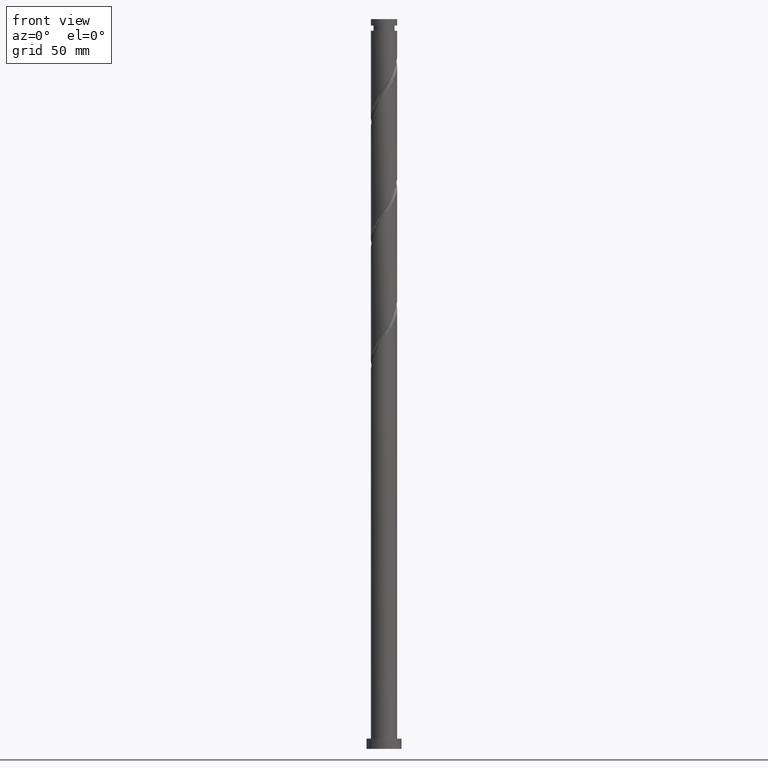
[diagram: clean part render]
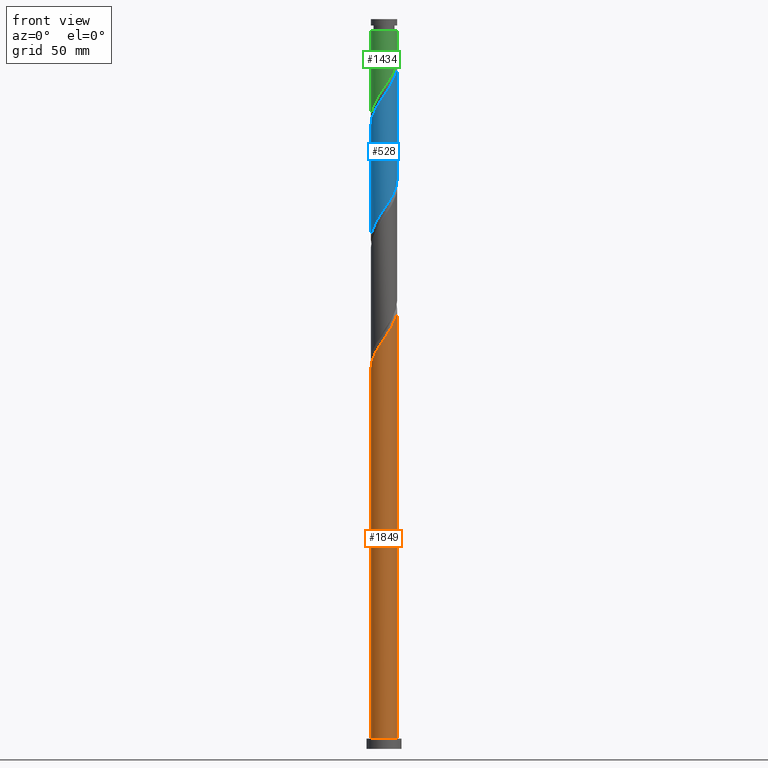
[diagram: same view with three faces highlighted in distinct colors, each labeled with its STEP entity id]
A machine part, front view with three faces highlighted in distinct colors.
Their STEP definitions:

[orange] entity #1849 — the highlighted cylindrical surface (edge-blend (fillet) strip) has radius 9 mm, axis along (-0, -0, -1).
#17 = CARTESIAN_POINT ( 'NONE',  ( 0.9222832091817327882, -8.996395876206099373, 282.4295620124471498 ) ) ;
#167 = CARTESIAN_POINT ( 'NONE',  ( 5.029915224307705657, -7.463240103083770727, 288.9399786791136080 ) ) ;
#176 = CARTESIAN_POINT ( 'NONE',  ( -8.820000000000012719, -1.790977386791924530, 262.8983120124469792 ) ) ;
#178 = DIRECTION ( 'NONE',  ( -0.000000000000000000, -0.000000000000000000, -1.000000000000000000 ) ) ;
#187 = CARTESIAN_POINT ( 'NONE',  ( -5.709259818917129081, -7.013565241690921326, 272.0128953457802936 ) ) ;
#227 = VERTEX_POINT ( 'NONE', #1030 ) ;
#252 = CARTESIAN_POINT ( 'NONE',  ( 9.000000000000015987, 1.262931168823190377E-14, 301.9081150344501339 ) ) ;
#292 = DIRECTION ( 'NONE',  ( -0.000000000000000000, -0.000000000000000000, -1.000000000000000000 ) ) ;
#324 = CARTESIAN_POINT ( 'NONE',  ( 7.992622888744461029, -4.231279290908929624, 295.4503953457804073 ) ) ;
#341 = CARTESIAN_POINT ( 'NONE',  ( 5.764980215651893225, -6.967836693874138732, 290.2420620124469792 ) ) ;
#351 = CARTESIAN_POINT ( 'NONE',  ( 8.664528520498114617, -2.590693072679860265, 298.0545620124471498 ) ) ;
#389 = CARTESIAN_POINT ( 'NONE',  ( -9.000000000000017764, 9.345243330105487039E-15, 260.2414483677833914 ) ) ;
#392 = VERTEX_POINT ( 'NONE', #389 ) ;
#472 = CARTESIAN_POINT ( 'NONE',  ( -4.231279290908926072, -7.992622888744462806, 274.6170620124470361 ) ) ;
#482 = CARTESIAN_POINT ( 'NONE',  ( 8.328575704621288267, -3.410986181794391836, 296.7524786791136080 ) ) ;
#492 = CARTESIAN_POINT ( 'NONE',  ( -7.958643512293401834, -4.294850232963518089, 266.8045620124470361 ) ) ;
#493 = LINE ( 'NONE', #686, #993 ) ;
#503 = CARTESIAN_POINT ( 'NONE',  ( -4.970269554913028465, -7.503094065217691622, 273.3149786791136080 ) ) ;
#513 = CARTESIAN_POINT ( 'NONE',  ( 3.477260898682818180, -8.301123818043667058, 286.3358120124470361 ) ) ;
#544 = CARTESIAN_POINT ( 'NONE',  ( -9.000000000000001776, 0.000000000000000000, 500.0000000000000000 ) ) ;
#574 =( BOUNDED_CURVE ( )  B_SPLINE_CURVE ( 2, ( #1285, #796, #1147, #814, #176, #1129, #1606, #492, #1118, #1786, #1635, #187, #503, #472, #823, #664, #971, #675, #1468, #17, #1936, #1776, #513, #1947, #167, #341, #1317, #1806, #1457, #324, #482, #351, #982, #1956, #1477 ),
 .UNSPECIFIED., .F., .T. ) 
 B_SPLINE_CURVE_WITH_KNOTS ( ( 3, 2, 2, 2, 2, 2, 2, 2, 2, 2, 2, 2, 2, 2, 2, 2, 2, 3 ),
 ( 0.05452869021808708083, 0.05468750000000000000, 0.06250000000000000000, 0.07031250000000000000, 0.07812500000000000000, 0.08593750000000000000, 0.09375000000000000000, 0.1015625000000000000, 0.1093750000000000000, 0.1171875000000000000, 0.1250000000000000000, 0.1328125000000000000, 0.1406250000000000000, 0.1484375000000000000, 0.1562500000000000000, 0.1640625000000000000, 0.1718750000000000000, 0.1795286902180874278 ),
 .UNSPECIFIED. ) 
 CURVE ( )  GEOMETRIC_REPRESENTATION_ITEM ( )  RATIONAL_B_SPLINE_CURVE ( ( 0.9089165573359389017, 0.9090019243628436607, 0.9090909090909354839, 0.9047133878838415910, 0.9090909090909354839, 0.9047133878838415910, 0.9090909090909354839, 0.9047133878838415910, 0.9090909090909354839, 0.9047133878838415910, 0.9090909090909354839, 0.9047133878838415910, 0.9090909090909354839, 0.9047133878838415910, 0.9090909090909354839, 0.9047133878838415910, 0.9090909090909354839, 0.9047133878838415910, 0.9090909090909354839, 0.9047133878838415910, 0.9090909090909354839, 0.9047133878838415910, 0.9090909090909354839, 0.9047133878838415910, 0.9090909090909354839, 0.9047133878838415910, 0.9090909090909354839, 0.9047133878838415910, 0.9090909090909354839, 0.9047133878838415910, 0.9090909090909354839, 0.9047133878838415910, 0.9090909090909354839, 0.9048023726119333032, 0.9089165573359391237 ) ) 
 REPRESENTATION_ITEM ( '' )  );
#585 = VERTEX_POINT ( 'NONE', #1937 ) ;
#610 = CARTESIAN_POINT ( 'NONE',  ( 0.000000000000000000, 0.000000000000000000, 7.000000000000000000 ) ) ;
#664 = CARTESIAN_POINT ( 'NONE',  ( -2.590693072679859377, -8.664528520498114617, 277.2212286791135512 ) ) ;
#675 = CARTESIAN_POINT ( 'NONE',  ( -0.8505479725451170481, -9.003461180332596570, 279.8253953457804073 ) ) ;
#686 = CARTESIAN_POINT ( 'NONE',  ( 9.000000000000001776, 1.102182119232617911E-15, 500.0000000000000000 ) ) ;
#714 = EDGE_CURVE ( 'NONE', #2095, #585, #493, .T. ) ;
#782 = DIRECTION ( 'NONE',  ( -1.000000000000000000, 0.000000000000000000, 0.000000000000000000 ) ) ;
#796 = CARTESIAN_POINT ( 'NONE',  ( -9.000000000000014211, -0.01793388036833428595, 260.2678019223006345 ) ) ;
#814 = CARTESIAN_POINT ( 'NONE',  ( -8.996395876206099373, -0.9222832091817332323, 261.5962286791136648 ) ) ;
#823 = CARTESIAN_POINT ( 'NONE',  ( -3.410986181794391836, -8.328575704621290043, 275.9191453457802936 ) ) ;
#862 = LINE ( 'NONE', #544, #1363 ) ;
#875 = ORIENTED_EDGE ( 'NONE', *, *, #1782, .T. ) ;
#929 = ORIENTED_EDGE ( 'NONE', *, *, #1902, .T. ) ;
#971 = CARTESIAN_POINT ( 'NONE',  ( -1.720620522612488656, -8.833994850415354705, 278.5233120124469792 ) ) ;
#982 = CARTESIAN_POINT ( 'NONE',  ( 8.833994850415352929, -1.720620522612493319, 299.3566453457803505 ) ) ;
#993 = VECTOR ( 'NONE', #178, 1000.000000000000000 ) ;
#1020 = ORIENTED_EDGE ( 'NONE', *, *, #1525, .F. ) ;
#1026 = AXIS2_PLACEMENT_3D ( 'NONE', #1552, #292, #782 ) ;
#1030 = CARTESIAN_POINT ( 'NONE',  ( -9.000000000000001776, 0.000000000000000000, 7.000000000000000000 ) ) ;
#1115 = CYLINDRICAL_SURFACE ( 'NONE', #1026, 9.000000000000001776 ) ;
#1118 = CARTESIAN_POINT ( 'NONE',  ( -7.463240103083769839, -5.029915224307705657, 268.1066453457804073 ) ) ;
#1129 = CARTESIAN_POINT ( 'NONE',  ( -8.643604123793931393, -2.659671564402114718, 264.2003953457803505 ) ) ;
#1147 = CARTESIAN_POINT ( 'NONE',  ( -8.999928528269348860, -0.03586761831830832109, 260.2941453457803505 ) ) ;
#1231 = FACE_OUTER_BOUND ( 'NONE', #1461, .T. ) ;
#1242 = DIRECTION ( 'NONE',  ( 0.000000000000000000, 0.000000000000000000, 1.000000000000000000 ) ) ;
#1285 = CARTESIAN_POINT ( 'NONE',  ( -9.000000000000017764, 9.345243330105488616E-15, 260.2414483677833914 ) ) ;
#1317 = CARTESIAN_POINT ( 'NONE',  ( 6.389272728671402390, -6.338548256395634795, 291.5441453457802936 ) ) ;
#1359 = DIRECTION ( 'NONE',  ( -0.000000000000000000, -0.000000000000000000, -1.000000000000000000 ) ) ;
#1363 = VECTOR ( 'NONE', #1359, 1000.000000000000000 ) ;
#1430 = CIRCLE ( 'NONE', #1908, 9.000000000000001776 ) ;
#1457 = CARTESIAN_POINT ( 'NONE',  ( 7.503094065217691622, -4.970269554913029353, 294.1483120124468655 ) ) ;
#1461 = EDGE_LOOP ( 'NONE', ( #1675, #1020, #875, #929 ) ) ;
#1468 = CARTESIAN_POINT ( 'NONE',  ( 0.03586761831830599656, -8.999928528269348860, 281.1274786791135512 ) ) ;
#1477 = CARTESIAN_POINT ( 'NONE',  ( 9.000000000000015987, 1.262931168823190377E-14, 301.9081150344500770 ) ) ;
#1525 = EDGE_CURVE ( 'NONE', #392, #2095, #574, .T. ) ;
#1552 = CARTESIAN_POINT ( 'NONE',  ( 0.000000000000000000, 0.000000000000000000, 500.0000000000000000 ) ) ;
#1606 = CARTESIAN_POINT ( 'NONE',  ( -8.301123818043667058, -3.477260898682816848, 265.5024786791135512 ) ) ;
#1635 = CARTESIAN_POINT ( 'NONE',  ( -6.338548256395633906, -6.389272728671402390, 270.7108120124469792 ) ) ;
#1675 = ORIENTED_EDGE ( 'NONE', *, *, #714, .F. ) ;
#1776 = CARTESIAN_POINT ( 'NONE',  ( 2.659671564402114274, -8.643604123793931393, 285.0337286791137217 ) ) ;
#1782 = EDGE_CURVE ( 'NONE', #392, #227, #862, .T. ) ;
#1786 = CARTESIAN_POINT ( 'NONE',  ( -6.967836693874138732, -5.764980215651893225, 269.4087286791137217 ) ) ;
#1806 = CARTESIAN_POINT ( 'NONE',  ( 7.013565241690918661, -5.709259818917129081, 292.8462286791135512 ) ) ;
#1849 = ADVANCED_FACE ( 'NONE', ( #1231 ), #1115, .T. ) ;
#1892 = DIRECTION ( 'NONE',  ( 1.000000000000000000, 0.000000000000000000, 0.000000000000000000 ) ) ;
#1902 = EDGE_CURVE ( 'NONE', #227, #585, #1430, .T. ) ;
#1908 = AXIS2_PLACEMENT_3D ( 'NONE', #610, #1242, #1892 ) ;
#1936 = CARTESIAN_POINT ( 'NONE',  ( 1.790977386791924308, -8.820000000000012719, 283.7316453457802936 ) ) ;
#1937 = CARTESIAN_POINT ( 'NONE',  ( 9.000000000000001776, 1.102182119232617911E-15, 7.000000000000000000 ) ) ;
#1947 = CARTESIAN_POINT ( 'NONE',  ( 4.294850232963518089, -7.958643512293401834, 287.6378953457803505 ) ) ;
#1956 = CARTESIAN_POINT ( 'NONE',  ( 9.000000000000017764, -0.8683183343608136262, 300.6321349290341800 ) ) ;
#2095 = VERTEX_POINT ( 'NONE', #252 ) ;

[blue] entity #528 — the highlighted cylindrical surface (edge-blend (fillet) strip) has radius 9 mm, axis along (-0, -0, -1).
#29 = CARTESIAN_POINT ( 'NONE',  ( 9.000000000000017764, 9.691915699351521729E-17, 468.5747817011167626 ) ) ;
#67 = VECTOR ( 'NONE', #1737, 1000.000000000000000 ) ;
#88 = CARTESIAN_POINT ( 'NONE',  ( 7.463240103083752075, -5.029915224307703880, 382.6899786791136080 ) ) ;
#90 = EDGE_CURVE ( 'NONE', #1164, #290, #212, .T. ) ;
#98 = CARTESIAN_POINT ( 'NONE',  ( 7.958643512293386735, -4.294850232963515424, 383.9920620124470361 ) ) ;
#103 = CARTESIAN_POINT ( 'NONE',  ( 0.9222832091817327882, -8.996395876206099373, 449.0962286791136648 ) ) ;
#108 = CARTESIAN_POINT ( 'NONE',  ( 4.231279290908916302, -7.992622888744453036, 376.1795620124470361 ) ) ;
#113 = CARTESIAN_POINT ( 'NONE',  ( -5.709259818917129081, -7.013565241690921326, 438.6795620124469792 ) ) ;
#123 = CARTESIAN_POINT ( 'NONE',  ( -8.999928528269348860, -0.03586761831830832109, 426.9608120124469792 ) ) ;
#143 = CARTESIAN_POINT ( 'NONE',  ( -8.643604123793931393, -2.659671564402114718, 430.8670620124469792 ) ) ;
#212 = LINE ( 'NONE', #532, #638 ) ;
#235 = CARTESIAN_POINT ( 'NONE',  ( 8.820000000000000284, -1.790977386791924975, 387.8983120124469792 ) ) ;
#255 = CARTESIAN_POINT ( 'NONE',  ( 8.999928528269329320, -0.03586761831830977826, 390.5024786791134943 ) ) ;
#265 = CARTESIAN_POINT ( 'NONE',  ( 8.643604123793918959, -2.659671564402111166, 386.5962286791136080 ) ) ;
#268 = ORIENTED_EDGE ( 'NONE', *, *, #435, .T. ) ;
#271 = CARTESIAN_POINT ( 'NONE',  ( 5.029915224307705657, -7.463240103083770727, 455.6066453457803505 ) ) ;
#277 = CARTESIAN_POINT ( 'NONE',  ( -0.9222832091817350086, -8.996395876206085163, 368.3670620124470361 ) ) ;
#290 = VERTEX_POINT ( 'NONE', #915 ) ;
#307 = EDGE_CURVE ( 'NONE', #290, #1043, #643, .T. ) ;
#400 = CARTESIAN_POINT ( 'NONE',  ( -3.477260898682815515, -8.301123818043651070, 364.4608120124469792 ) ) ;
#426 = CARTESIAN_POINT ( 'NONE',  ( -7.958643512293401834, -4.294850232963518089, 433.4712286791136648 ) ) ;
#435 = EDGE_CURVE ( 'NONE', #1334, #1043, #1537, .T. ) ;
#439 = CARTESIAN_POINT ( 'NONE',  ( 8.833994850415352929, -1.720620522612493319, 466.0233120124469224 ) ) ;
#459 = CARTESIAN_POINT ( 'NONE',  ( 7.992622888744461029, -4.231279290908929624, 462.1170620124469792 ) ) ;
#514 = AXIS2_PLACEMENT_3D ( 'NONE', #1598, #1287, #1617 ) ;
#528 = ADVANCED_FACE ( 'NONE', ( #636 ), #646, .T. ) ;
#532 = CARTESIAN_POINT ( 'NONE',  ( 9.000000000000001776, 1.102182119232617911E-15, 500.0000000000000000 ) ) ;
#572 = CARTESIAN_POINT ( 'NONE',  ( -7.013565241690911556, -5.709259818917118423, 357.9503953457804073 ) ) ;
#587 = CARTESIAN_POINT ( 'NONE',  ( -9.000000000000017764, -0.01793388036832959179, 426.9344685889673201 ) ) ;
#594 = CARTESIAN_POINT ( 'NONE',  ( -8.328575704621277609, -3.410986181794382510, 354.0441453457802368 ) ) ;
#599 = CARTESIAN_POINT ( 'NONE',  ( 7.013565241690918661, -5.709259818917129081, 459.5128953457804073 ) ) ;
#632 = CARTESIAN_POINT ( 'NONE',  ( -8.820000000000012719, -1.790977386791924530, 429.5649786791136648 ) ) ;
#636 = FACE_OUTER_BOUND ( 'NONE', #2052, .T. ) ;
#638 = VECTOR ( 'NONE', #1810, 1000.000000000000000 ) ;
#643 =( BOUNDED_CURVE ( )  B_SPLINE_CURVE ( 2, ( #745, #1558, #255, #1081, #235, #265, #902, #98, #88, #1206, #1216, #1855, #1885, #108, #1727, #1397, #756, #1546, #1226, #277, #1386, #1864, #400, #2037, #768, #1683, #1571, #572, #2049, #1408, #594, #927, #883, #1526, #1876 ),
 .UNSPECIFIED., .F., .T. ) 
 B_SPLINE_CURVE_WITH_KNOTS ( ( 3, 2, 2, 2, 2, 2, 2, 2, 2, 2, 2, 2, 2, 2, 2, 2, 2, 3 ),
 ( 0.5545286902180872612, 0.5546875000000000000, 0.5625000000000000000, 0.5703125000000000000, 0.5781250000000000000, 0.5859375000000000000, 0.5937500000000000000, 0.6015625000000000000, 0.6093750000000000000, 0.6171875000000000000, 0.6250000000000000000, 0.6328125000000000000, 0.6406250000000000000, 0.6484375000000000000, 0.6562500000000000000, 0.6640625000000000000, 0.6718750000000000000, 0.6795286902180870392 ),
 .UNSPECIFIED. ) 
 CURVE ( )  GEOMETRIC_REPRESENTATION_ITEM ( )  RATIONAL_B_SPLINE_CURVE ( ( 0.9089165573359329064, 0.9090019243628376655, 0.9090909090909294887, 0.9047133878838355958, 0.9090909090909294887, 0.9047133878838355958, 0.9090909090909294887, 0.9047133878838355958, 0.9090909090909294887, 0.9047133878838355958, 0.9090909090909294887, 0.9047133878838355958, 0.9090909090909294887, 0.9047133878838355958, 0.9090909090909294887, 0.9047133878838355958, 0.9090909090909294887, 0.9047133878838355958, 0.9090909090909294887, 0.9047133878838355958, 0.9090909090909294887, 0.9047133878838355958, 0.9090909090909294887, 0.9047133878838355958, 0.9090909090909294887, 0.9047133878838355958, 0.9090909090909294887, 0.9047133878838355958, 0.9090909090909294887, 0.9047133878838355958, 0.9090909090909294887, 0.9047133878838355958, 0.9090909090909294887, 0.9048023726119275301, 0.9089165573359326844 ) ) 
 REPRESENTATION_ITEM ( '' )  );
#646 = CYLINDRICAL_SURFACE ( 'NONE', #514, 9.000000000000001776 ) ;
#745 = CARTESIAN_POINT ( 'NONE',  ( 9.000000000000000000, 7.742349579828172045E-15, 390.5551756571103965 ) ) ;
#750 = CARTESIAN_POINT ( 'NONE',  ( -4.231279290908926072, -7.992622888744462806, 441.2837286791137217 ) ) ;
#756 = CARTESIAN_POINT ( 'NONE',  ( 1.720620522612482661, -8.833994850415340494, 372.2733120124469792 ) ) ;
#762 = CARTESIAN_POINT ( 'NONE',  ( 7.503094065217691622, -4.970269554913029353, 460.8149786791136648 ) ) ;
#767 = CARTESIAN_POINT ( 'NONE',  ( -9.000000000000017764, -3.187149201132904323E-15, 426.9081150344500770 ) ) ;
#768 = CARTESIAN_POINT ( 'NONE',  ( -5.029915224307700328, -7.463240103083756516, 361.8566453457802368 ) ) ;
#772 = CARTESIAN_POINT ( 'NONE',  ( 8.328575704621288267, -3.410986181794391836, 463.4191453457802368 ) ) ;
#790 = CARTESIAN_POINT ( 'NONE',  ( 1.790977386791924308, -8.820000000000012719, 450.3983120124469224 ) ) ;
#793 =( BOUNDED_CURVE ( )  B_SPLINE_CURVE ( 2, ( #2066, #587, #123, #1594, #632, #143, #1412, #426, #1763, #940, #1402, #113, #2089, #750, #2077, #1435, #1273, #1075, #2042, #103, #790, #1923, #1391, #1721, #271, #921, #1563, #599, #762, #459, #772, #1584, #439, #2054, #1903 ),
 .UNSPECIFIED., .F., .T. ) 
 B_SPLINE_CURVE_WITH_KNOTS ( ( 3, 2, 2, 2, 2, 2, 2, 2, 2, 2, 2, 2, 2, 2, 2, 2, 2, 3 ),
 ( 0.5545286902180870392, 0.5546875000000000000, 0.5625000000000000000, 0.5703125000000000000, 0.5781250000000000000, 0.5859375000000000000, 0.5937500000000000000, 0.6015625000000000000, 0.6093750000000000000, 0.6171875000000000000, 0.6250000000000000000, 0.6328125000000000000, 0.6406250000000000000, 0.6484375000000000000, 0.6562500000000000000, 0.6640625000000000000, 0.6718750000000000000, 0.6795286902180870392 ),
 .UNSPECIFIED. ) 
 CURVE ( )  GEOMETRIC_REPRESENTATION_ITEM ( )  RATIONAL_B_SPLINE_CURVE ( ( 0.9089165573359386796, 0.9090019243628435497, 0.9090909090909354839, 0.9047133878838415910, 0.9090909090909354839, 0.9047133878838415910, 0.9090909090909354839, 0.9047133878838415910, 0.9090909090909354839, 0.9047133878838415910, 0.9090909090909354839, 0.9047133878838415910, 0.9090909090909354839, 0.9047133878838415910, 0.9090909090909354839, 0.9047133878838415910, 0.9090909090909354839, 0.9047133878838415910, 0.9090909090909354839, 0.9047133878838415910, 0.9090909090909354839, 0.9047133878838415910, 0.9090909090909354839, 0.9047133878838415910, 0.9090909090909354839, 0.9047133878838415910, 0.9090909090909354839, 0.9047133878838415910, 0.9090909090909354839, 0.9047133878838415910, 0.9090909090909354839, 0.9047133878838415910, 0.9090909090909354839, 0.9048023726119335253, 0.9089165573359386796 ) ) 
 REPRESENTATION_ITEM ( '' )  );
#845 = CARTESIAN_POINT ( 'NONE',  ( -9.000000000000000000, -6.754519710471182682E-15, 348.8885089904438246 ) ) ;
#883 = CARTESIAN_POINT ( 'NONE',  ( -8.833994850415340494, -1.720620522612483327, 351.4399786791136080 ) ) ;
#885 = ORIENTED_EDGE ( 'NONE', *, *, #1875, .F. ) ;
#902 = CARTESIAN_POINT ( 'NONE',  ( 8.301123818043651070, -3.477260898682816403, 385.2941453457803505 ) ) ;
#915 = CARTESIAN_POINT ( 'NONE',  ( 9.000000000000000000, 7.742349579828170467E-15, 390.5551756571103965 ) ) ;
#921 = CARTESIAN_POINT ( 'NONE',  ( 5.764980215651893225, -6.967836693874138732, 456.9087286791137785 ) ) ;
#927 = CARTESIAN_POINT ( 'NONE',  ( -8.664528520498102182, -2.590693072679854048, 352.7420620124469792 ) ) ;
#940 = CARTESIAN_POINT ( 'NONE',  ( -6.967836693874138732, -5.764980215651893225, 436.0753953457804073 ) ) ;
#1043 = VERTEX_POINT ( 'NONE', #845 ) ;
#1075 = CARTESIAN_POINT ( 'NONE',  ( -0.8505479725451170481, -9.003461180332596570, 446.4920620124469224 ) ) ;
#1081 = CARTESIAN_POINT ( 'NONE',  ( 8.996395876206083386, -0.9222832091817394495, 389.2003953457803505 ) ) ;
#1083 = ORIENTED_EDGE ( 'NONE', *, *, #90, .F. ) ;
#1113 = ORIENTED_EDGE ( 'NONE', *, *, #307, .F. ) ;
#1164 = VERTEX_POINT ( 'NONE', #29 ) ;
#1206 = CARTESIAN_POINT ( 'NONE',  ( 6.967836693874127185, -5.764980215651887896, 381.3878953457805210 ) ) ;
#1216 = CARTESIAN_POINT ( 'NONE',  ( 6.338548256395620584, -6.389272728671397061, 380.0858120124469224 ) ) ;
#1226 = CARTESIAN_POINT ( 'NONE',  ( -0.03586761831830934805, -8.999928528269329320, 369.6691453457802368 ) ) ;
#1273 = CARTESIAN_POINT ( 'NONE',  ( -1.720620522612488656, -8.833994850415354705, 445.1899786791136648 ) ) ;
#1287 = DIRECTION ( 'NONE',  ( -0.000000000000000000, -0.000000000000000000, -1.000000000000000000 ) ) ;
#1334 = VERTEX_POINT ( 'NONE', #767 ) ;
#1386 = CARTESIAN_POINT ( 'NONE',  ( -1.790977386791924308, -8.820000000000000284, 367.0649786791135512 ) ) ;
#1391 = CARTESIAN_POINT ( 'NONE',  ( 3.477260898682818180, -8.301123818043667058, 453.0024786791134943 ) ) ;
#1397 = CARTESIAN_POINT ( 'NONE',  ( 2.590693072679852715, -8.664528520498102182, 373.5753953457804641 ) ) ;
#1402 = CARTESIAN_POINT ( 'NONE',  ( -6.338548256395633906, -6.389272728671402390, 437.3774786791136080 ) ) ;
#1408 = CARTESIAN_POINT ( 'NONE',  ( -7.992622888744453036, -4.231279290908918078, 355.3462286791137217 ) ) ;
#1412 = CARTESIAN_POINT ( 'NONE',  ( -8.301123818043667058, -3.477260898682816848, 432.1691453457803505 ) ) ;
#1435 = CARTESIAN_POINT ( 'NONE',  ( -2.590693072679859377, -8.664528520498114617, 443.8878953457804641 ) ) ;
#1526 = CARTESIAN_POINT ( 'NONE',  ( -8.999999999999998224, -0.8683183343608487093, 350.1644890958598353 ) ) ;
#1537 = LINE ( 'NONE', #1704, #67 ) ;
#1546 = CARTESIAN_POINT ( 'NONE',  ( 0.8505479725451118300, -9.003461180332582359, 370.9712286791136648 ) ) ;
#1558 = CARTESIAN_POINT ( 'NONE',  ( 9.000000000000000000, -0.01793388036835619898, 390.5288221025930397 ) ) ;
#1563 = CARTESIAN_POINT ( 'NONE',  ( 6.389272728671402390, -6.338548256395634795, 458.2108120124469792 ) ) ;
#1571 = CARTESIAN_POINT ( 'NONE',  ( -6.389272728671397061, -6.338548256395624136, 359.2524786791136648 ) ) ;
#1584 = CARTESIAN_POINT ( 'NONE',  ( 8.664528520498114617, -2.590693072679860265, 464.7212286791136648 ) ) ;
#1594 = CARTESIAN_POINT ( 'NONE',  ( -8.996395876206099373, -0.9222832091817332323, 428.2628953457803505 ) ) ;
#1598 = CARTESIAN_POINT ( 'NONE',  ( 0.000000000000000000, 0.000000000000000000, 500.0000000000000000 ) ) ;
#1617 = DIRECTION ( 'NONE',  ( -1.000000000000000000, 0.000000000000000000, 0.000000000000000000 ) ) ;
#1683 = CARTESIAN_POINT ( 'NONE',  ( -5.764980215651887008, -6.967836693874127185, 360.5545620124470929 ) ) ;
#1704 = CARTESIAN_POINT ( 'NONE',  ( -9.000000000000001776, 0.000000000000000000, 500.0000000000000000 ) ) ;
#1721 = CARTESIAN_POINT ( 'NONE',  ( 4.294850232963518089, -7.958643512293401834, 454.3045620124471498 ) ) ;
#1727 = CARTESIAN_POINT ( 'NONE',  ( 3.410986181794382510, -8.328575704621277609, 374.8774786791135512 ) ) ;
#1737 = DIRECTION ( 'NONE',  ( -0.000000000000000000, -0.000000000000000000, -1.000000000000000000 ) ) ;
#1763 = CARTESIAN_POINT ( 'NONE',  ( -7.463240103083769839, -5.029915224307705657, 434.7733120124469224 ) ) ;
#1810 = DIRECTION ( 'NONE',  ( -0.000000000000000000, -0.000000000000000000, -1.000000000000000000 ) ) ;
#1855 = CARTESIAN_POINT ( 'NONE',  ( 5.709259818917114870, -7.013565241690915109, 378.7837286791136648 ) ) ;
#1864 = CARTESIAN_POINT ( 'NONE',  ( -2.659671564402113830, -8.643604123793917182, 365.7628953457804073 ) ) ;
#1875 = EDGE_CURVE ( 'NONE', #1334, #1164, #793, .T. ) ;
#1876 = CARTESIAN_POINT ( 'NONE',  ( -9.000000000000000000, -6.754519710471182682E-15, 348.8885089904438246 ) ) ;
#1885 = CARTESIAN_POINT ( 'NONE',  ( 4.970269554913015142, -7.503094065217680075, 377.4816453457802368 ) ) ;
#1903 = CARTESIAN_POINT ( 'NONE',  ( 9.000000000000019540, 9.691915699351520496E-17, 468.5747817011167626 ) ) ;
#1923 = CARTESIAN_POINT ( 'NONE',  ( 2.659671564402114274, -8.643604123793931393, 451.7003953457804073 ) ) ;
#2037 = CARTESIAN_POINT ( 'NONE',  ( -4.294850232963515424, -7.958643512293386735, 363.1587286791136648 ) ) ;
#2042 = CARTESIAN_POINT ( 'NONE',  ( 0.03586761831830599656, -8.999928528269348860, 447.7941453457802936 ) ) ;
#2049 = CARTESIAN_POINT ( 'NONE',  ( -7.503094065217679187, -4.970269554913015142, 356.6483120124468655 ) ) ;
#2052 = EDGE_LOOP ( 'NONE', ( #1083, #885, #268, #1113 ) ) ;
#2054 = CARTESIAN_POINT ( 'NONE',  ( 9.000000000000008882, -0.8683183343608540383, 467.2988015957007519 ) ) ;
#2066 = CARTESIAN_POINT ( 'NONE',  ( -9.000000000000019540, -3.187149201132904323E-15, 426.9081150344500770 ) ) ;
#2077 = CARTESIAN_POINT ( 'NONE',  ( -3.410986181794391836, -8.328575704621290043, 442.5858120124469792 ) ) ;
#2089 = CARTESIAN_POINT ( 'NONE',  ( -4.970269554913028465, -7.503094065217691622, 439.9816453457804641 ) ) ;

[green] entity #1434 — the highlighted cylindrical surface (edge-blend (fillet) strip) has radius 9 mm, axis along (-0, -0, -1).
#1 = LINE ( 'NONE', #1761, #1924 ) ;
#21 = EDGE_CURVE ( 'NONE', #597, #730, #1, .T. ) ;
#44 = CARTESIAN_POINT ( 'NONE',  ( -4.294850232963515424, -7.958643512293386735, 446.4920620124470361 ) ) ;
#56 = CARTESIAN_POINT ( 'NONE',  ( 4.970269554913015142, -7.503094065217680075, 460.8149786791134943 ) ) ;
#70 = CARTESIAN_POINT ( 'NONE',  ( 8.999999999999998224, -0.01793388036837500685, 473.8621554359263541 ) ) ;
#80 = VERTEX_POINT ( 'NONE', #335 ) ;
#138 = CARTESIAN_POINT ( 'NONE',  ( 8.999999999999953815, 1.102182119232615150E-15, 492.0649786791136080 ) ) ;
#152 = EDGE_CURVE ( 'NONE', #597, #80, #912, .T. ) ;
#180 = VECTOR ( 'NONE', #1307, 1000.000000000000000 ) ;
#200 = CARTESIAN_POINT ( 'NONE',  ( 0.000000000000000000, 0.000000000000000000, 492.0649786791136080 ) ) ;
#202 = CARTESIAN_POINT ( 'NONE',  ( -2.659671564402113830, -8.643604123793917182, 449.0962286791136648 ) ) ;
#214 = CARTESIAN_POINT ( 'NONE',  ( -8.664528520498102182, -2.590693072679854048, 436.0753953457803505 ) ) ;
#222 = CARTESIAN_POINT ( 'NONE',  ( 9.000000000000000000, -4.801225931063400340E-15, 473.8885089904436541 ) ) ;
#226 = CARTESIAN_POINT ( 'NONE',  ( -7.013565241690911556, -5.709259818917118423, 441.2837286791137785 ) ) ;
#304 = DIRECTION ( 'NONE',  ( -1.000000000000000000, 0.000000000000000000, 0.000000000000000000 ) ) ;
#335 = CARTESIAN_POINT ( 'NONE',  ( -8.999999999999953815, 0.000000000000000000, 492.0649786791136080 ) ) ;
#369 = CARTESIAN_POINT ( 'NONE',  ( -7.503094065217679187, -4.970269554913015142, 439.9816453457801799 ) ) ;
#381 = CARTESIAN_POINT ( 'NONE',  ( 8.996395876206083386, -0.9222832091817394495, 472.5337286791137217 ) ) ;
#391 = CARTESIAN_POINT ( 'NONE',  ( -0.9222832091817350086, -8.996395876206085163, 451.7003953457804073 ) ) ;
#424 = ORIENTED_EDGE ( 'NONE', *, *, #21, .F. ) ;
#469 = CARTESIAN_POINT ( 'NONE',  ( -8.833994850415340494, -1.720620522612483327, 434.7733120124469224 ) ) ;
#495 = ORIENTED_EDGE ( 'NONE', *, *, #152, .T. ) ;
#534 = CARTESIAN_POINT ( 'NONE',  ( -5.764980215651887008, -6.967836693874127185, 443.8878953457804641 ) ) ;
#597 = VERTEX_POINT ( 'NONE', #138 ) ;
#648 = DIRECTION ( 'NONE',  ( -0.000000000000000000, -0.000000000000000000, -1.000000000000000000 ) ) ;
#678 = DIRECTION ( 'NONE',  ( -0.000000000000000000, -0.000000000000000000, -1.000000000000000000 ) ) ;
#692 = CARTESIAN_POINT ( 'NONE',  ( 8.999928528269329320, -0.03586761831830977826, 473.8358120124468655 ) ) ;
#704 = CARTESIAN_POINT ( 'NONE',  ( 0.8505479725451118300, -9.003461180332582359, 454.3045620124470361 ) ) ;
#717 = CARTESIAN_POINT ( 'NONE',  ( 1.720620522612482661, -8.833994850415340494, 455.6066453457803505 ) ) ;
#730 = VERTEX_POINT ( 'NONE', #222 ) ;
#827 = DIRECTION ( 'NONE',  ( -1.000000000000000000, 0.000000000000000000, 0.000000000000000000 ) ) ;
#833 = LINE ( 'NONE', #1277, #180 ) ;
#849 = CARTESIAN_POINT ( 'NONE',  ( 7.958643512293386735, -4.294850232963515424, 467.3253953457804641 ) ) ;
#874 = CARTESIAN_POINT ( 'NONE',  ( 6.967836693874127185, -5.764980215651887896, 464.7212286791136080 ) ) ;
#908 = CARTESIAN_POINT ( 'NONE',  ( -8.999999999999998224, -0.8683183343608487093, 433.4978224291930928 ) ) ;
#912 = CIRCLE ( 'NONE', #2065, 8.999999999999953815 ) ;
#1008 = CARTESIAN_POINT ( 'NONE',  ( 5.709259818917114870, -7.013565241690915109, 462.1170620124469224 ) ) ;
#1019 = CARTESIAN_POINT ( 'NONE',  ( -7.992622888744453036, -4.231279290908918078, 438.6795620124469792 ) ) ;
#1032 = CARTESIAN_POINT ( 'NONE',  ( 3.410986181794382510, -8.328575704621277609, 458.2108120124468655 ) ) ;
#1042 = CARTESIAN_POINT ( 'NONE',  ( 8.301123818043651070, -3.477260898682816403, 468.6274786791136080 ) ) ;
#1080 = FACE_OUTER_BOUND ( 'NONE', #1369, .T. ) ;
#1186 = CARTESIAN_POINT ( 'NONE',  ( 4.231279290908916302, -7.992622888744453036, 459.5128953457804073 ) ) ;
#1198 = CARTESIAN_POINT ( 'NONE',  ( 2.590693072679852715, -8.664528520498102182, 456.9087286791137217 ) ) ;
#1240 = VERTEX_POINT ( 'NONE', #1918 ) ;
#1247 = CARTESIAN_POINT ( 'NONE',  ( 0.000000000000000000, 0.000000000000000000, 500.0000000000000000 ) ) ;
#1277 = CARTESIAN_POINT ( 'NONE',  ( -9.000000000000001776, 0.000000000000000000, 500.0000000000000000 ) ) ;
#1307 = DIRECTION ( 'NONE',  ( -0.000000000000000000, -0.000000000000000000, -1.000000000000000000 ) ) ;
#1333 = CARTESIAN_POINT ( 'NONE',  ( 8.820000000000000284, -1.790977386791924975, 471.2316453457802936 ) ) ;
#1346 = CARTESIAN_POINT ( 'NONE',  ( 9.000000000000000000, -4.801225931063400340E-15, 473.8885089904437109 ) ) ;
#1369 = EDGE_LOOP ( 'NONE', ( #424, #495, #1900, #1879 ) ) ;
#1434 = ADVANCED_FACE ( 'NONE', ( #1080 ), #2082, .T. ) ;
#1491 = CARTESIAN_POINT ( 'NONE',  ( 7.463240103083752075, -5.029915224307703880, 466.0233120124468655 ) ) ;
#1495 = EDGE_CURVE ( 'NONE', #80, #1240, #833, .T. ) ;
#1519 =( BOUNDED_CURVE ( )  B_SPLINE_CURVE ( 2, ( #1346, #70, #692, #381, #1333, #1846, #1042, #849, #1491, #874, #1685, #1008, #56, #1186, #1032, #1198, #717, #704, #1650, #391, #1999, #202, #1674, #44, #1985, #534, #1824, #226, #369, #1019, #1661, #214, #469, #908, #1741 ),
 .UNSPECIFIED., .F., .T. ) 
 B_SPLINE_CURVE_WITH_KNOTS ( ( 3, 2, 2, 2, 2, 2, 2, 2, 2, 2, 2, 2, 2, 2, 2, 2, 2, 3 ),
 ( 0.3045286902180874278, 0.3046875000000000000, 0.3125000000000000000, 0.3203125000000000000, 0.3281250000000000000, 0.3359375000000000000, 0.3437500000000000000, 0.3515625000000000000, 0.3593750000000000000, 0.3671875000000000000, 0.3750000000000000000, 0.3828125000000000000, 0.3906250000000000000, 0.3984375000000000000, 0.4062500000000000000, 0.4140625000000000000, 0.4218750000000000000, 0.4295286902180870392 ),
 .UNSPECIFIED. ) 
 CURVE ( )  GEOMETRIC_REPRESENTATION_ITEM ( )  RATIONAL_B_SPLINE_CURVE ( ( 0.9089165573359332395, 0.9090019243628378875, 0.9090909090909294887, 0.9047133878838355958, 0.9090909090909294887, 0.9047133878838355958, 0.9090909090909294887, 0.9047133878838355958, 0.9090909090909294887, 0.9047133878838355958, 0.9090909090909294887, 0.9047133878838355958, 0.9090909090909294887, 0.9047133878838355958, 0.9090909090909294887, 0.9047133878838355958, 0.9090909090909294887, 0.9047133878838355958, 0.9090909090909294887, 0.9047133878838355958, 0.9090909090909294887, 0.9047133878838355958, 0.9090909090909294887, 0.9047133878838355958, 0.9090909090909294887, 0.9047133878838355958, 0.9090909090909294887, 0.9047133878838355958, 0.9090909090909294887, 0.9047133878838355958, 0.9090909090909294887, 0.9047133878838355958, 0.9090909090909294887, 0.9048023726119275301, 0.9089165573359326844 ) ) 
 REPRESENTATION_ITEM ( '' )  );
#1600 = AXIS2_PLACEMENT_3D ( 'NONE', #1247, #1713, #304 ) ;
#1650 = CARTESIAN_POINT ( 'NONE',  ( -0.03586761831830934805, -8.999928528269329320, 453.0024786791134943 ) ) ;
#1661 = CARTESIAN_POINT ( 'NONE',  ( -8.328575704621277609, -3.410986181794382510, 437.3774786791135512 ) ) ;
#1674 = CARTESIAN_POINT ( 'NONE',  ( -3.477260898682815515, -8.301123818043651070, 447.7941453457802936 ) ) ;
#1685 = CARTESIAN_POINT ( 'NONE',  ( 6.338548256395620584, -6.389272728671397061, 463.4191453457802368 ) ) ;
#1713 = DIRECTION ( 'NONE',  ( -0.000000000000000000, -0.000000000000000000, -1.000000000000000000 ) ) ;
#1741 = CARTESIAN_POINT ( 'NONE',  ( -9.000000000000000000, 5.777872820767290722E-15, 432.2218423237771958 ) ) ;
#1761 = CARTESIAN_POINT ( 'NONE',  ( 9.000000000000001776, 1.102182119232617911E-15, 500.0000000000000000 ) ) ;
#1824 = CARTESIAN_POINT ( 'NONE',  ( -6.389272728671397061, -6.338548256395624136, 442.5858120124469792 ) ) ;
#1836 = EDGE_CURVE ( 'NONE', #730, #1240, #1519, .T. ) ;
#1846 = CARTESIAN_POINT ( 'NONE',  ( 8.643604123793918959, -2.659671564402111166, 469.9295620124470361 ) ) ;
#1879 = ORIENTED_EDGE ( 'NONE', *, *, #1836, .F. ) ;
#1900 = ORIENTED_EDGE ( 'NONE', *, *, #1495, .T. ) ;
#1918 = CARTESIAN_POINT ( 'NONE',  ( -9.000000000000000000, 5.777872820767290722E-15, 432.2218423237771958 ) ) ;
#1924 = VECTOR ( 'NONE', #648, 1000.000000000000000 ) ;
#1985 = CARTESIAN_POINT ( 'NONE',  ( -5.029915224307700328, -7.463240103083756516, 445.1899786791135512 ) ) ;
#1999 = CARTESIAN_POINT ( 'NONE',  ( -1.790977386791924308, -8.820000000000000284, 450.3983120124469224 ) ) ;
#2065 = AXIS2_PLACEMENT_3D ( 'NONE', #200, #678, #827 ) ;
#2082 = CYLINDRICAL_SURFACE ( 'NONE', #1600, 9.000000000000001776 ) ;